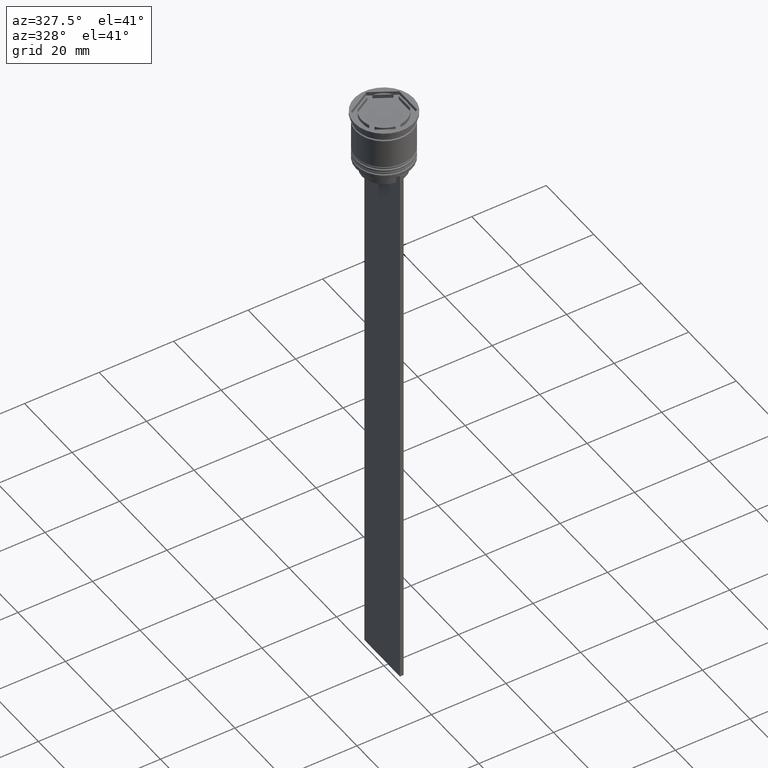
[diagram: clean part render]
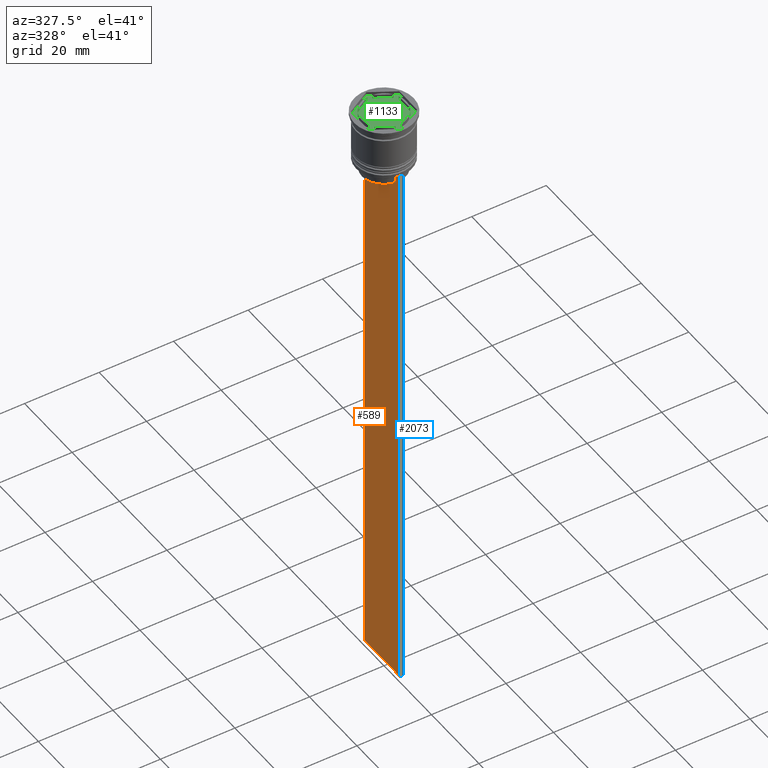
[diagram: same view with three faces highlighted in distinct colors, each labeled with its STEP entity id]
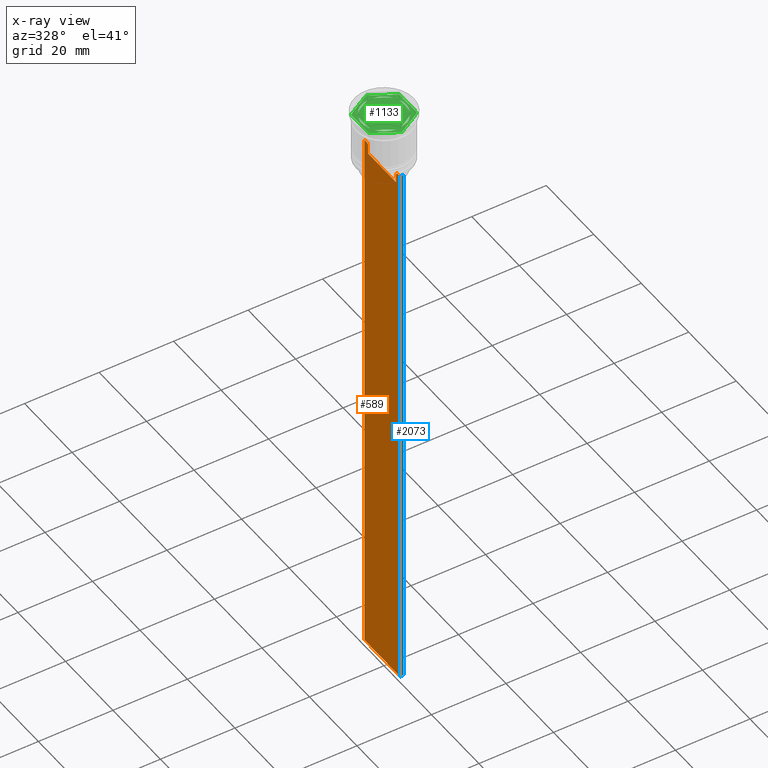
[diagram: x-ray of the same camera — body ghosted, the three highlighted faces saturated]
A machine part, auxiliary view with three faces highlighted in distinct colors.
The next image is the same camera in x-ray (body ghosted, the three faces saturated) — at least one of them is partly hidden behind the body in this view.
Their STEP definitions:

[orange] entity #589 — the highlighted planar face has unit normal (-1, 0, 0).
#6 = LINE ( 'NONE', #584, #1273 ) ;
#19 = DIRECTION ( 'NONE',  ( 0.000000000000000000, 0.000000000000000000, -1.000000000000000000 ) ) ;
#39 = LINE ( 'NONE', #2161, #349 ) ;
#52 = CARTESIAN_POINT ( 'NONE',  ( -0.5000000000000000000, -7.499999999999999112, -14.00000000000000178 ) ) ;
#57 = CARTESIAN_POINT ( 'NONE',  ( -0.5000000000000000000, -7.383088784512886527, -14.00000000000000178 ) ) ;
#83 = CARTESIAN_POINT ( 'NONE',  ( -0.5000000000000000000, 6.380438856379706536, -14.00000000000000178 ) ) ;
#92 = VECTOR ( 'NONE', #2430, 1000.000000000000000 ) ;
#119 = B_SPLINE_CURVE_WITH_KNOTS ( 'NONE', 3,
 ( #83, #479, #288, #1829 ),
 .UNSPECIFIED., .F., .F.,
 ( 4, 4 ),
 ( 0.01087727669788152163, 0.01158556069794289788 ),
 .UNSPECIFIED. ) ;
#132 = LINE ( 'NONE', #2221, #2261 ) ;
#142 = VECTOR ( 'NONE', #19, 1000.000000000000000 ) ;
#206 = EDGE_CURVE ( 'NONE', #769, #685, #132, .T. ) ;
#216 = EDGE_CURVE ( 'NONE', #1190, #2009, #295, .T. ) ;
#234 = EDGE_CURVE ( 'NONE', #1624, #825, #1654, .T. ) ;
#288 = CARTESIAN_POINT ( 'NONE',  ( -0.5000000000000000000, 6.046020074006152711, -14.33335695351623151 ) ) ;
#293 = CARTESIAN_POINT ( 'NONE',  ( -0.5000000000000000000, -5.878775382679625849, -14.50000000000000000 ) ) ;
#295 = LINE ( 'NONE', #1668, #92 ) ;
#303 = ORIENTED_EDGE ( 'NONE', *, *, #779, .F. ) ;
#339 = VECTOR ( 'NONE', #1070, 1000.000000000000000 ) ;
#349 = VECTOR ( 'NONE', #1207, 1000.000000000000000 ) ;
#358 = CARTESIAN_POINT ( 'NONE',  ( -0.5000000000000000000, 7.383088784512886527, -14.00000000000000178 ) ) ;
#384 = ORIENTED_EDGE ( 'NONE', *, *, #1374, .F. ) ;
#398 = LINE ( 'NONE', #1363, #142 ) ;
#416 = ORIENTED_EDGE ( 'NONE', *, *, #1396, .F. ) ;
#479 = CARTESIAN_POINT ( 'NONE',  ( -0.5000000000000000000, 6.213239387491007015, -14.16668843563492430 ) ) ;
#482 = CARTESIAN_POINT ( 'NONE',  ( -0.5000000000000000000, -6.046019991840948293, -14.33335703538585726 ) ) ;
#503 = ORIENTED_EDGE ( 'NONE', *, *, #216, .F. ) ;
#526 = DIRECTION ( 'NONE',  ( 0.000000000000000000, -1.000000000000000000, 0.000000000000000000 ) ) ;
#534 = CARTESIAN_POINT ( 'NONE',  ( -0.5000000000000000000, -7.499999999999999112, -14.00000000000000178 ) ) ;
#564 = EDGE_CURVE ( 'NONE', #2061, #769, #2449, .T. ) ;
#584 = CARTESIAN_POINT ( 'NONE',  ( -0.5000000000000000000, -5.878775382679625849, 0.000000000000000000 ) ) ;
#589 = ADVANCED_FACE ( 'NONE', ( #1443 ), #648, .T. ) ;
#648 = PLANE ( 'NONE',  #1899 ) ;
#657 = CARTESIAN_POINT ( 'NONE',  ( -0.5000000000000000000, -5.878775382679625849, -14.50000000000000000 ) ) ;
#661 = DIRECTION ( 'NONE',  ( 0.000000000000000000, 0.000000000000000000, 1.000000000000000000 ) ) ;
#672 = DIRECTION ( 'NONE',  ( 0.000000000000000000, -1.000000000000000000, 0.000000000000000000 ) ) ;
#685 = VERTEX_POINT ( 'NONE', #57 ) ;
#705 = DIRECTION ( 'NONE',  ( 0.000000000000000000, -1.000000000000000000, 0.000000000000000000 ) ) ;
#724 = CARTESIAN_POINT ( 'NONE',  ( -0.5000000000000000000, 7.500000000000002665, 1.033296378372908997 ) ) ;
#740 = LINE ( 'NONE', #1495, #1942 ) ;
#769 = VERTEX_POINT ( 'NONE', #2460 ) ;
#771 = ORIENTED_EDGE ( 'NONE', *, *, #2094, .F. ) ;
#779 = EDGE_CURVE ( 'NONE', #1720, #2288, #904, .T. ) ;
#824 = CARTESIAN_POINT ( 'NONE',  ( -0.5000000000000000000, -5.878775382679625849, -17.00000000000000000 ) ) ;
#825 = VERTEX_POINT ( 'NONE', #1103 ) ;
#850 = CARTESIAN_POINT ( 'NONE',  ( -0.5000000000000000000, -6.380438856379706536, -14.00000000000000178 ) ) ;
#855 = CARTESIAN_POINT ( 'NONE',  ( -0.5000000000000000000, 5.878775382679625849, -14.50000000000000000 ) ) ;
#857 = DIRECTION ( 'NONE',  ( 0.000000000000000000, -1.000000000000000000, 0.000000000000000000 ) ) ;
#904 = LINE ( 'NONE', #534, #1739 ) ;
#923 = ORIENTED_EDGE ( 'NONE', *, *, #2284, .F. ) ;
#987 = DIRECTION ( 'NONE',  ( -0.000000000000000000, -0.000000000000000000, 1.000000000000000000 ) ) ;
#1020 = CARTESIAN_POINT ( 'NONE',  ( -0.5000000000000000000, -7.499999999999999112, -163.9999999999999716 ) ) ;
#1023 = ORIENTED_EDGE ( 'NONE', *, *, #2377, .F. ) ;
#1038 = DIRECTION ( 'NONE',  ( -1.000000000000000000, 0.000000000000000000, 0.000000000000000000 ) ) ;
#1070 = DIRECTION ( 'NONE',  ( 0.000000000000000000, 0.000000000000000000, -1.000000000000000000 ) ) ;
#1082 = EDGE_CURVE ( 'NONE', #2288, #1190, #119, .T. ) ;
#1103 = CARTESIAN_POINT ( 'NONE',  ( -0.5000000000000000000, 7.500000000000002665, -163.9999999999999716 ) ) ;
#1132 = ORIENTED_EDGE ( 'NONE', *, *, #1746, .F. ) ;
#1190 = VERTEX_POINT ( 'NONE', #855 ) ;
#1192 = ORIENTED_EDGE ( 'NONE', *, *, #206, .F. ) ;
#1207 = DIRECTION ( 'NONE',  ( 0.000000000000000000, 1.000000000000000000, 0.000000000000000000 ) ) ;
#1225 = EDGE_LOOP ( 'NONE', ( #1598, #303, #923, #1329, #771, #416, #1132, #1192, #1262, #384, #1023, #503 ) ) ;
#1262 = ORIENTED_EDGE ( 'NONE', *, *, #564, .F. ) ;
#1273 = VECTOR ( 'NONE', #987, 1000.000000000000000 ) ;
#1320 = VECTOR ( 'NONE', #672, 1000.000000000000000 ) ;
#1329 = ORIENTED_EDGE ( 'NONE', *, *, #234, .T. ) ;
#1363 = CARTESIAN_POINT ( 'NONE',  ( -0.5000000000000000000, -7.499999999999999112, 1.033296378372908997 ) ) ;
#1374 = EDGE_CURVE ( 'NONE', #1579, #2061, #6, .T. ) ;
#1394 = LINE ( 'NONE', #52, #1908 ) ;
#1396 = EDGE_CURVE ( 'NONE', #2063, #1937, #398, .T. ) ;
#1426 = CARTESIAN_POINT ( 'NONE',  ( -0.5000000000000000000, -7.499999999999999112, -14.00000000000000178 ) ) ;
#1443 = FACE_OUTER_BOUND ( 'NONE', #1225, .T. ) ;
#1495 = CARTESIAN_POINT ( 'NONE',  ( -0.5000000000000000000, -7.499999999999999112, -14.00000000000000178 ) ) ;
#1579 = VERTEX_POINT ( 'NONE', #824 ) ;
#1598 = ORIENTED_EDGE ( 'NONE', *, *, #1082, .F. ) ;
#1606 = LINE ( 'NONE', #2201, #1320 ) ;
#1611 = CARTESIAN_POINT ( 'NONE',  ( -0.5000000000000000000, -7.499999999999999112, 1.033296378372908997 ) ) ;
#1624 = VERTEX_POINT ( 'NONE', #2362 ) ;
#1638 = CARTESIAN_POINT ( 'NONE',  ( -0.5000000000000000000, 5.878775382679625849, -17.00000000000000000 ) ) ;
#1654 = LINE ( 'NONE', #724, #339 ) ;
#1668 = CARTESIAN_POINT ( 'NONE',  ( -0.5000000000000000000, 5.878775382679625849, 0.000000000000000000 ) ) ;
#1720 = VERTEX_POINT ( 'NONE', #358 ) ;
#1739 = VECTOR ( 'NONE', #526, 1000.000000000000000 ) ;
#1746 = EDGE_CURVE ( 'NONE', #685, #2063, #740, .T. ) ;
#1829 = CARTESIAN_POINT ( 'NONE',  ( -0.5000000000000000000, 5.878775382679625849, -14.50000000000000000 ) ) ;
#1849 = DIRECTION ( 'NONE',  ( 0.000000000000000000, -1.000000000000000000, 0.000000000000000000 ) ) ;
#1899 = AXIS2_PLACEMENT_3D ( 'NONE', #1611, #1038, #661 ) ;
#1908 = VECTOR ( 'NONE', #857, 1000.000000000000000 ) ;
#1937 = VERTEX_POINT ( 'NONE', #1020 ) ;
#1942 = VECTOR ( 'NONE', #705, 1000.000000000000000 ) ;
#2009 = VERTEX_POINT ( 'NONE', #1638 ) ;
#2061 = VERTEX_POINT ( 'NONE', #657 ) ;
#2063 = VERTEX_POINT ( 'NONE', #1426 ) ;
#2094 = EDGE_CURVE ( 'NONE', #1937, #825, #39, .T. ) ;
#2161 = CARTESIAN_POINT ( 'NONE',  ( -0.5000000000000000000, -7.499999999999999112, -163.9999999999999716 ) ) ;
#2201 = CARTESIAN_POINT ( 'NONE',  ( -0.5000000000000000000, 5.899999999999998579, -17.00000000000000000 ) ) ;
#2221 = CARTESIAN_POINT ( 'NONE',  ( -0.5000000000000000000, -7.499999999999999112, -14.00000000000000178 ) ) ;
#2261 = VECTOR ( 'NONE', #1849, 1000.000000000000000 ) ;
#2284 = EDGE_CURVE ( 'NONE', #1624, #1720, #1394, .T. ) ;
#2288 = VERTEX_POINT ( 'NONE', #2385 ) ;
#2362 = CARTESIAN_POINT ( 'NONE',  ( -0.5000000000000000000, 7.500000000000002665, -14.00000000000000178 ) ) ;
#2377 = EDGE_CURVE ( 'NONE', #2009, #1579, #1606, .T. ) ;
#2385 = CARTESIAN_POINT ( 'NONE',  ( -0.5000000000000000000, 6.380438856379706536, -14.00000000000000178 ) ) ;
#2405 = CARTESIAN_POINT ( 'NONE',  ( -0.5000000000000000000, -6.213239311785844876, -14.16668851110870087 ) ) ;
#2430 = DIRECTION ( 'NONE',  ( 0.000000000000000000, 0.000000000000000000, -1.000000000000000000 ) ) ;
#2449 = B_SPLINE_CURVE_WITH_KNOTS ( 'NONE', 3,
 ( #293, #482, #2405, #850 ),
 .UNSPECIFIED., .F., .F.,
 ( 4, 4 ),
 ( 0.02765270321082434479, 0.02836198271238431559 ),
 .UNSPECIFIED. ) ;
#2460 = CARTESIAN_POINT ( 'NONE',  ( -0.5000000000000000000, -6.380438856379706536, -14.00000000000000178 ) ) ;

[blue] entity #2073 — the highlighted planar face has unit normal (0, -1, -0).
#12 = AXIS2_PLACEMENT_3D ( 'NONE', #1065, #619, #246 ) ;
#19 = DIRECTION ( 'NONE',  ( 0.000000000000000000, 0.000000000000000000, -1.000000000000000000 ) ) ;
#109 = CARTESIAN_POINT ( 'NONE',  ( 0.5000000000000000000, -7.499999999999999112, -14.00000000000000178 ) ) ;
#142 = VECTOR ( 'NONE', #19, 1000.000000000000000 ) ;
#246 = DIRECTION ( 'NONE',  ( 0.000000000000000000, 0.000000000000000000, -1.000000000000000000 ) ) ;
#253 = EDGE_CURVE ( 'NONE', #2063, #1031, #2407, .T. ) ;
#289 = PLANE ( 'NONE',  #12 ) ;
#388 = CARTESIAN_POINT ( 'NONE',  ( 0.5000000000000000000, -7.499999999999999112, -163.9999999999999716 ) ) ;
#398 = LINE ( 'NONE', #1363, #142 ) ;
#415 = VECTOR ( 'NONE', #2015, 1000.000000000000000 ) ;
#452 = ORIENTED_EDGE ( 'NONE', *, *, #1396, .T. ) ;
#468 = ORIENTED_EDGE ( 'NONE', *, *, #253, .F. ) ;
#619 = DIRECTION ( 'NONE',  ( 0.000000000000000000, -1.000000000000000000, -0.000000000000000000 ) ) ;
#690 = CARTESIAN_POINT ( 'NONE',  ( 0.5000000000000000000, -7.499999999999999112, -14.00000000000000178 ) ) ;
#861 = LINE ( 'NONE', #1770, #1223 ) ;
#862 = FACE_OUTER_BOUND ( 'NONE', #1852, .T. ) ;
#1001 = ORIENTED_EDGE ( 'NONE', *, *, #1607, .F. ) ;
#1008 = EDGE_CURVE ( 'NONE', #1883, #1937, #861, .T. ) ;
#1020 = CARTESIAN_POINT ( 'NONE',  ( -0.5000000000000000000, -7.499999999999999112, -163.9999999999999716 ) ) ;
#1031 = VERTEX_POINT ( 'NONE', #690 ) ;
#1065 = CARTESIAN_POINT ( 'NONE',  ( 0.5000000000000000000, -7.499999999999999112, 1.033296378372908997 ) ) ;
#1221 = DIRECTION ( 'NONE',  ( -1.000000000000000000, 0.000000000000000000, 0.000000000000000000 ) ) ;
#1223 = VECTOR ( 'NONE', #1221, 1000.000000000000000 ) ;
#1303 = VECTOR ( 'NONE', #1627, 1000.000000000000000 ) ;
#1363 = CARTESIAN_POINT ( 'NONE',  ( -0.5000000000000000000, -7.499999999999999112, 1.033296378372908997 ) ) ;
#1396 = EDGE_CURVE ( 'NONE', #2063, #1937, #398, .T. ) ;
#1426 = CARTESIAN_POINT ( 'NONE',  ( -0.5000000000000000000, -7.499999999999999112, -14.00000000000000178 ) ) ;
#1491 = ORIENTED_EDGE ( 'NONE', *, *, #1008, .F. ) ;
#1607 = EDGE_CURVE ( 'NONE', #1031, #1883, #2393, .T. ) ;
#1627 = DIRECTION ( 'NONE',  ( 1.000000000000000000, 0.000000000000000000, 0.000000000000000000 ) ) ;
#1770 = CARTESIAN_POINT ( 'NONE',  ( 0.5000000000000000000, -7.499999999999999112, -163.9999999999999716 ) ) ;
#1791 = CARTESIAN_POINT ( 'NONE',  ( 0.5000000000000000000, -7.499999999999999112, 1.033296378372908997 ) ) ;
#1852 = EDGE_LOOP ( 'NONE', ( #468, #452, #1491, #1001 ) ) ;
#1883 = VERTEX_POINT ( 'NONE', #388 ) ;
#1937 = VERTEX_POINT ( 'NONE', #1020 ) ;
#2015 = DIRECTION ( 'NONE',  ( 0.000000000000000000, 0.000000000000000000, -1.000000000000000000 ) ) ;
#2063 = VERTEX_POINT ( 'NONE', #1426 ) ;
#2073 = ADVANCED_FACE ( 'NONE', ( #862 ), #289, .T. ) ;
#2393 = LINE ( 'NONE', #1791, #415 ) ;
#2407 = LINE ( 'NONE', #109, #1303 ) ;

[green] entity #1133 — the highlighted planar face has unit normal (0, 0, 1).
#2 = CARTESIAN_POINT ( 'NONE',  ( -5.500000000000001776, -2.397915761656359113, -1.000000000000000888 ) ) ;
#17 = AXIS2_PLACEMENT_3D ( 'NONE', #2010, #817, #244 ) ;
#37 = VERTEX_POINT ( 'NONE', #1201 ) ;
#38 = CARTESIAN_POINT ( 'NONE',  ( -6.500000000000000888, 3.752776749732564365, -1.000000000000000000 ) ) ;
#46 = VECTOR ( 'NONE', #959, 1000.000000000000000 ) ;
#82 = ORIENTED_EDGE ( 'NONE', *, *, #1427, .F. ) ;
#103 = CARTESIAN_POINT ( 'NONE',  ( -4.280685092543093048E-16, -7.505553499465134060, -1.000000000000000000 ) ) ;
#106 = ORIENTED_EDGE ( 'NONE', *, *, #2372, .F. ) ;
#118 = DIRECTION ( 'NONE',  ( 1.000000000000000000, 0.000000000000000000, 0.000000000000000000 ) ) ;
#159 = CARTESIAN_POINT ( 'NONE',  ( 4.826655965729520048, -3.564181839986233946, -1.000000000000000888 ) ) ;
#183 = CARTESIAN_POINT ( 'NONE',  ( 6.500000000000000888, 3.752776749732567918, -1.000000000000000000 ) ) ;
#184 = ORIENTED_EDGE ( 'NONE', *, *, #1409, .T. ) ;
#185 = CIRCLE ( 'NONE', #1078, 6.000000000000000888 ) ;
#194 = EDGE_CURVE ( 'NONE', #1554, #667, #1218, .T. ) ;
#195 = DIRECTION ( 'NONE',  ( 0.000000000000000000, 1.000000000000000000, 0.000000000000000000 ) ) ;
#207 = EDGE_LOOP ( 'NONE', ( #2480, #925 ) ) ;
#213 = CARTESIAN_POINT ( 'NONE',  ( -6.500000000000000888, -3.752776749732568806, -1.000000000000000000 ) ) ;
#222 = EDGE_CURVE ( 'NONE', #654, #298, #1423, .T. ) ;
#236 = CARTESIAN_POINT ( 'NONE',  ( -4.280685092543093048E-16, -7.505553499465134060, -1.000000000000000000 ) ) ;
#244 = DIRECTION ( 'NONE',  ( 1.000000000000000000, 0.000000000000000000, 0.000000000000000000 ) ) ;
#258 = VECTOR ( 'NONE', #768, 1000.000000000000114 ) ;
#264 = CARTESIAN_POINT ( 'NONE',  ( 5.500000000000000000, -3.175426480542943519, -1.000000000000000888 ) ) ;
#271 = EDGE_CURVE ( 'NONE', #918, #37, #1177, .T. ) ;
#297 = DIRECTION ( 'NONE',  ( 0.000000000000000000, 0.000000000000000000, 1.000000000000000000 ) ) ;
#298 = VERTEX_POINT ( 'NONE', #318 ) ;
#299 = AXIS2_PLACEMENT_3D ( 'NONE', #1081, #1845, #118 ) ;
#311 = VERTEX_POINT ( 'NONE', #2411 ) ;
#316 = VERTEX_POINT ( 'NONE', #568 ) ;
#318 = CARTESIAN_POINT ( 'NONE',  ( -6.000000000000000888, 0.000000000000000000, -1.000000000000000000 ) ) ;
#374 = VECTOR ( 'NONE', #656, 1000.000000000000000 ) ;
#382 = VERTEX_POINT ( 'NONE', #952 ) ;
#401 = EDGE_CURVE ( 'NONE', #667, #1554, #1185, .T. ) ;
#431 = FACE_BOUND ( 'NONE', #207, .T. ) ;
#433 = CARTESIAN_POINT ( 'NONE',  ( 0.000000000000000000, 0.000000000000000000, -1.000000000000000000 ) ) ;
#444 = FACE_BOUND ( 'NONE', #957, .T. ) ;
#449 = DIRECTION ( 'NONE',  ( 0.8660254037844385966, 0.5000000000000001110, 0.000000000000000000 ) ) ;
#459 = ORIENTED_EDGE ( 'NONE', *, *, #1096, .F. ) ;
#491 = VERTEX_POINT ( 'NONE', #1172 ) ;
#499 = DIRECTION ( 'NONE',  ( 0.000000000000000000, 0.000000000000000000, 1.000000000000000000 ) ) ;
#507 = DIRECTION ( 'NONE',  ( -0.8660254037844385966, -0.5000000000000001110, 0.000000000000000000 ) ) ;
#515 = DIRECTION ( 'NONE',  ( 1.000000000000000000, 0.000000000000000000, 0.000000000000000000 ) ) ;
#520 = CARTESIAN_POINT ( 'NONE',  ( 0.000000000000000000, 7.505553499465133171, -1.000000000000000000 ) ) ;
#568 = CARTESIAN_POINT ( 'NONE',  ( 0.6733440342704786197, -5.962097601642593503, -1.000000000000000888 ) ) ;
#626 = VERTEX_POINT ( 'NONE', #1400 ) ;
#641 = PLANE ( 'NONE',  #1979 ) ;
#643 = DIRECTION ( 'NONE',  ( 0.000000000000000000, 0.000000000000000000, 1.000000000000000000 ) ) ;
#654 = VERTEX_POINT ( 'NONE', #2392 ) ;
#656 = DIRECTION ( 'NONE',  ( 0.000000000000000000, -1.000000000000000000, 0.000000000000000000 ) ) ;
#666 = DIRECTION ( 'NONE',  ( 1.000000000000000000, 0.000000000000000000, 0.000000000000000000 ) ) ;
#667 = VERTEX_POINT ( 'NONE', #2205 ) ;
#675 = DIRECTION ( 'NONE',  ( -0.8660254037844387076, -0.4999999999999997224, 0.000000000000000000 ) ) ;
#679 = DIRECTION ( 'NONE',  ( 1.000000000000000000, 0.000000000000000000, 0.000000000000000000 ) ) ;
#706 = CARTESIAN_POINT ( 'NONE',  ( 0.000000000000000000, 0.000000000000000000, -1.000000000000000000 ) ) ;
#707 = AXIS2_PLACEMENT_3D ( 'NONE', #706, #1471, #515 ) ;
#715 = CARTESIAN_POINT ( 'NONE',  ( -5.500000000000001776, -3.175426480542941743, -1.000000000000000888 ) ) ;
#749 = EDGE_LOOP ( 'NONE', ( #1907, #1480 ) ) ;
#763 = AXIS2_PLACEMENT_3D ( 'NONE', #433, #643, #1823 ) ;
#768 = DIRECTION ( 'NONE',  ( 0.8660254037844387076, -0.4999999999999997224, 0.000000000000000000 ) ) ;
#781 = AXIS2_PLACEMENT_3D ( 'NONE', #1445, #2247, #1257 ) ;
#803 = LINE ( 'NONE', #213, #258 ) ;
#817 = DIRECTION ( 'NONE',  ( 0.000000000000000000, 0.000000000000000000, 1.000000000000000000 ) ) ;
#875 = VECTOR ( 'NONE', #675, 1000.000000000000114 ) ;
#878 = EDGE_CURVE ( 'NONE', #1209, #1499, #1170, .T. ) ;
#918 = VERTEX_POINT ( 'NONE', #1558 ) ;
#924 = VECTOR ( 'NONE', #507, 1000.000000000000000 ) ;
#925 = ORIENTED_EDGE ( 'NONE', *, *, #1029, .F. ) ;
#941 = VERTEX_POINT ( 'NONE', #2320 ) ;
#952 = CARTESIAN_POINT ( 'NONE',  ( 5.500000000000001776, 2.397915761656360001, -1.000000000000000888 ) ) ;
#957 = EDGE_LOOP ( 'NONE', ( #1268, #2228 ) ) ;
#959 = DIRECTION ( 'NONE',  ( 2.311253228826399154E-16, 1.000000000000000000, 0.000000000000000000 ) ) ;
#960 = LINE ( 'NONE', #1921, #2273 ) ;
#974 = CARTESIAN_POINT ( 'NONE',  ( -5.500000000000001776, 3.175426480542942187, -1.000000000000000888 ) ) ;
#991 = FACE_OUTER_BOUND ( 'NONE', #2059, .T. ) ;
#1009 = EDGE_CURVE ( 'NONE', #626, #941, #2387, .T. ) ;
#1029 = EDGE_CURVE ( 'NONE', #382, #491, #1397, .T. ) ;
#1078 = AXIS2_PLACEMENT_3D ( 'NONE', #2004, #297, #666 ) ;
#1081 = CARTESIAN_POINT ( 'NONE',  ( 0.000000000000000000, 0.000000000000000000, -1.000000000000000000 ) ) ;
#1086 = VECTOR ( 'NONE', #1464, 999.9999999999998863 ) ;
#1096 = EDGE_CURVE ( 'NONE', #1134, #1556, #1378, .T. ) ;
#1110 = VECTOR ( 'NONE', #1983, 1000.000000000000000 ) ;
#1133 = ADVANCED_FACE ( 'NONE', ( #444, #431, #1592, #1780, #1952, #1392, #991 ), #641, .T. ) ;
#1134 = VERTEX_POINT ( 'NONE', #1757 ) ;
#1147 = ORIENTED_EDGE ( 'NONE', *, *, #1009, .T. ) ;
#1170 = LINE ( 'NONE', #1920, #46 ) ;
#1172 = CARTESIAN_POINT ( 'NONE',  ( 5.500000000000000000, -2.397915761656362665, -1.000000000000000888 ) ) ;
#1177 = CIRCLE ( 'NONE', #707, 6.000000000000000888 ) ;
#1185 = LINE ( 'NONE', #2113, #1936 ) ;
#1201 = CARTESIAN_POINT ( 'NONE',  ( -4.826655965729520048, 3.564181839986233946, -1.000000000000000888 ) ) ;
#1209 = VERTEX_POINT ( 'NONE', #2327 ) ;
#1211 = CARTESIAN_POINT ( 'NONE',  ( 4.826655965729517384, 3.564181839986237499, -1.000000000000000888 ) ) ;
#1214 = EDGE_LOOP ( 'NONE', ( #2092, #82, #106 ) ) ;
#1215 = DIRECTION ( 'NONE',  ( 1.000000000000000000, 0.000000000000000000, -0.000000000000000000 ) ) ;
#1218 = CIRCLE ( 'NONE', #1777, 6.000000000000000888 ) ;
#1249 = DIRECTION ( 'NONE',  ( 0.000000000000000000, 0.000000000000000000, 1.000000000000000000 ) ) ;
#1253 = LINE ( 'NONE', #1412, #875 ) ;
#1257 = DIRECTION ( 'NONE',  ( 1.000000000000000000, 0.000000000000000000, 0.000000000000000000 ) ) ;
#1268 = ORIENTED_EDGE ( 'NONE', *, *, #194, .F. ) ;
#1324 = VERTEX_POINT ( 'NONE', #159 ) ;
#1373 = EDGE_CURVE ( 'NONE', #1499, #311, #1902, .T. ) ;
#1378 = CIRCLE ( 'NONE', #299, 6.000000000000000888 ) ;
#1392 = FACE_BOUND ( 'NONE', #1766, .T. ) ;
#1397 = LINE ( 'NONE', #264, #1110 ) ;
#1399 = EDGE_LOOP ( 'NONE', ( #459, #2125 ) ) ;
#1400 = CARTESIAN_POINT ( 'NONE',  ( -6.500000000000000888, 3.752776749732564365, -1.000000000000000000 ) ) ;
#1409 = EDGE_CURVE ( 'NONE', #941, #1941, #803, .T. ) ;
#1412 = CARTESIAN_POINT ( 'NONE',  ( -1.734723475976807094E-15, -6.350852961085884374, -1.000000000000000888 ) ) ;
#1423 = CIRCLE ( 'NONE', #781, 6.000000000000000888 ) ;
#1427 = EDGE_CURVE ( 'NONE', #1890, #654, #1563, .T. ) ;
#1445 = CARTESIAN_POINT ( 'NONE',  ( 0.000000000000000000, 0.000000000000000000, -1.000000000000000000 ) ) ;
#1464 = DIRECTION ( 'NONE',  ( -0.8660254037844385966, 0.5000000000000002220, 0.000000000000000000 ) ) ;
#1471 = DIRECTION ( 'NONE',  ( 0.000000000000000000, 0.000000000000000000, 1.000000000000000000 ) ) ;
#1476 = VECTOR ( 'NONE', #449, 1000.000000000000114 ) ;
#1480 = ORIENTED_EDGE ( 'NONE', *, *, #1943, .F. ) ;
#1499 = VERTEX_POINT ( 'NONE', #1960 ) ;
#1554 = VERTEX_POINT ( 'NONE', #1211 ) ;
#1556 = VERTEX_POINT ( 'NONE', #1626 ) ;
#1558 = CARTESIAN_POINT ( 'NONE',  ( -0.6733440342704829495, 5.962097601642593503, -1.000000000000000888 ) ) ;
#1563 = LINE ( 'NONE', #974, #1872 ) ;
#1570 = DIRECTION ( 'NONE',  ( 0.8660254037844387076, -0.4999999999999997224, 0.000000000000000000 ) ) ;
#1592 = FACE_BOUND ( 'NONE', #749, .T. ) ;
#1593 = ORIENTED_EDGE ( 'NONE', *, *, #1373, .T. ) ;
#1595 = CIRCLE ( 'NONE', #763, 6.000000000000000888 ) ;
#1621 = LINE ( 'NONE', #236, #1476 ) ;
#1626 = CARTESIAN_POINT ( 'NONE',  ( -0.6733440342704850590, -5.962097601642593503, -1.000000000000000888 ) ) ;
#1680 = CIRCLE ( 'NONE', #17, 6.000000000000000888 ) ;
#1719 = DIRECTION ( 'NONE',  ( -0.8660254037844387076, 0.4999999999999997224, 0.000000000000000000 ) ) ;
#1735 = DIRECTION ( 'NONE',  ( 0.8660254037844385966, 0.5000000000000001110, -0.000000000000000000 ) ) ;
#1757 = CARTESIAN_POINT ( 'NONE',  ( -4.826655965729520048, -3.564181839986235723, -1.000000000000000888 ) ) ;
#1766 = EDGE_LOOP ( 'NONE', ( #2115, #2155 ) ) ;
#1777 = AXIS2_PLACEMENT_3D ( 'NONE', #2207, #499, #679 ) ;
#1780 = FACE_BOUND ( 'NONE', #1399, .T. ) ;
#1809 = ORIENTED_EDGE ( 'NONE', *, *, #878, .T. ) ;
#1823 = DIRECTION ( 'NONE',  ( 1.000000000000000000, 0.000000000000000000, 0.000000000000000000 ) ) ;
#1826 = EDGE_CURVE ( 'NONE', #37, #918, #960, .T. ) ;
#1845 = DIRECTION ( 'NONE',  ( 0.000000000000000000, 0.000000000000000000, 1.000000000000000000 ) ) ;
#1863 = ORIENTED_EDGE ( 'NONE', *, *, #2481, .T. ) ;
#1865 = LINE ( 'NONE', #715, #1086 ) ;
#1872 = VECTOR ( 'NONE', #195, 1000.000000000000000 ) ;
#1890 = VERTEX_POINT ( 'NONE', #2 ) ;
#1902 = LINE ( 'NONE', #183, #2306 ) ;
#1907 = ORIENTED_EDGE ( 'NONE', *, *, #2141, .F. ) ;
#1920 = CARTESIAN_POINT ( 'NONE',  ( 6.499999999999999112, -3.752776749732567030, -1.000000000000000000 ) ) ;
#1921 = CARTESIAN_POINT ( 'NONE',  ( 4.336808689942017736E-16, 6.350852961085885262, -1.000000000000000888 ) ) ;
#1936 = VECTOR ( 'NONE', #1570, 1000.000000000000114 ) ;
#1941 = VERTEX_POINT ( 'NONE', #103 ) ;
#1943 = EDGE_CURVE ( 'NONE', #1324, #316, #1253, .T. ) ;
#1952 = FACE_BOUND ( 'NONE', #1214, .T. ) ;
#1955 = EDGE_CURVE ( 'NONE', #1941, #1209, #1621, .T. ) ;
#1960 = CARTESIAN_POINT ( 'NONE',  ( 6.500000000000000888, 3.752776749732567918, -1.000000000000000000 ) ) ;
#1979 = AXIS2_PLACEMENT_3D ( 'NONE', #2168, #1249, #1215 ) ;
#1983 = DIRECTION ( 'NONE',  ( -2.731481088613015255E-16, -1.000000000000000000, 0.000000000000000000 ) ) ;
#2004 = CARTESIAN_POINT ( 'NONE',  ( 0.000000000000000000, 0.000000000000000000, -1.000000000000000000 ) ) ;
#2010 = CARTESIAN_POINT ( 'NONE',  ( 0.000000000000000000, 0.000000000000000000, -1.000000000000000000 ) ) ;
#2059 = EDGE_LOOP ( 'NONE', ( #1593, #1863, #1147, #184, #2308, #1809 ) ) ;
#2092 = ORIENTED_EDGE ( 'NONE', *, *, #222, .F. ) ;
#2113 = CARTESIAN_POINT ( 'NONE',  ( 5.500000000000001776, 3.175426480542944407, -1.000000000000000888 ) ) ;
#2115 = ORIENTED_EDGE ( 'NONE', *, *, #271, .F. ) ;
#2125 = ORIENTED_EDGE ( 'NONE', *, *, #2463, .F. ) ;
#2141 = EDGE_CURVE ( 'NONE', #316, #1324, #185, .T. ) ;
#2155 = ORIENTED_EDGE ( 'NONE', *, *, #1826, .F. ) ;
#2168 = CARTESIAN_POINT ( 'NONE',  ( 0.000000000000000000, 0.000000000000000000, -1.000000000000000000 ) ) ;
#2205 = CARTESIAN_POINT ( 'NONE',  ( 0.6733440342704825055, 5.962097601642593503, -1.000000000000000888 ) ) ;
#2207 = CARTESIAN_POINT ( 'NONE',  ( 0.000000000000000000, 0.000000000000000000, -1.000000000000000000 ) ) ;
#2228 = ORIENTED_EDGE ( 'NONE', *, *, #401, .F. ) ;
#2240 = LINE ( 'NONE', #520, #924 ) ;
#2247 = DIRECTION ( 'NONE',  ( 0.000000000000000000, 0.000000000000000000, 1.000000000000000000 ) ) ;
#2273 = VECTOR ( 'NONE', #1735, 1000.000000000000000 ) ;
#2306 = VECTOR ( 'NONE', #1719, 1000.000000000000114 ) ;
#2308 = ORIENTED_EDGE ( 'NONE', *, *, #1955, .T. ) ;
#2320 = CARTESIAN_POINT ( 'NONE',  ( -6.500000000000000888, -3.752776749732568806, -1.000000000000000000 ) ) ;
#2327 = CARTESIAN_POINT ( 'NONE',  ( 6.499999999999999112, -3.752776749732567030, -1.000000000000000000 ) ) ;
#2357 = EDGE_CURVE ( 'NONE', #491, #382, #1595, .T. ) ;
#2372 = EDGE_CURVE ( 'NONE', #298, #1890, #1680, .T. ) ;
#2387 = LINE ( 'NONE', #38, #374 ) ;
#2392 = CARTESIAN_POINT ( 'NONE',  ( -5.500000000000001776, 2.397915761656359113, -1.000000000000000888 ) ) ;
#2411 = CARTESIAN_POINT ( 'NONE',  ( 0.000000000000000000, 7.505553499465133171, -1.000000000000000000 ) ) ;
#2463 = EDGE_CURVE ( 'NONE', #1556, #1134, #1865, .T. ) ;
#2480 = ORIENTED_EDGE ( 'NONE', *, *, #2357, .F. ) ;
#2481 = EDGE_CURVE ( 'NONE', #311, #626, #2240, .T. ) ;